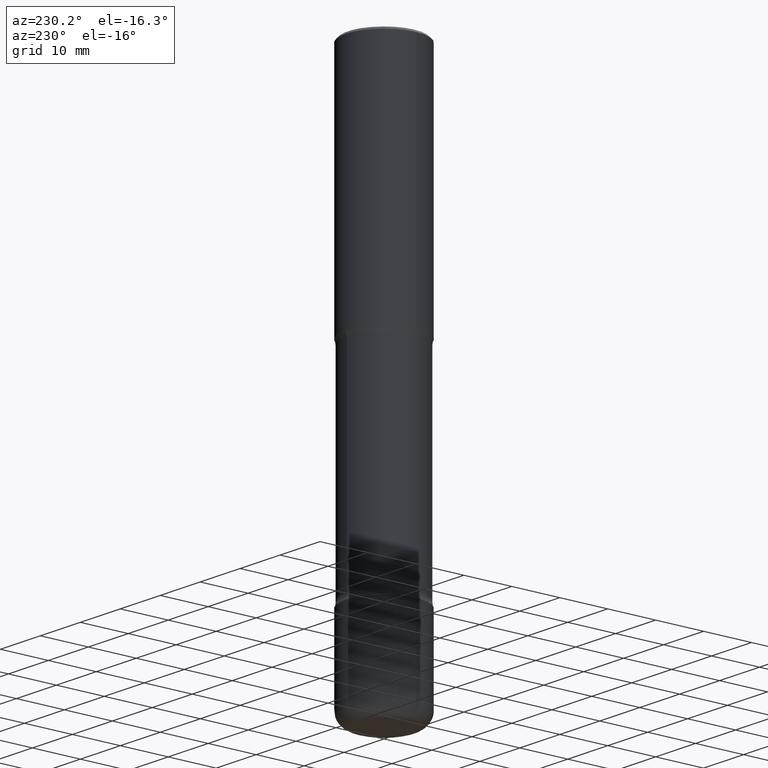
[diagram: clean part render]
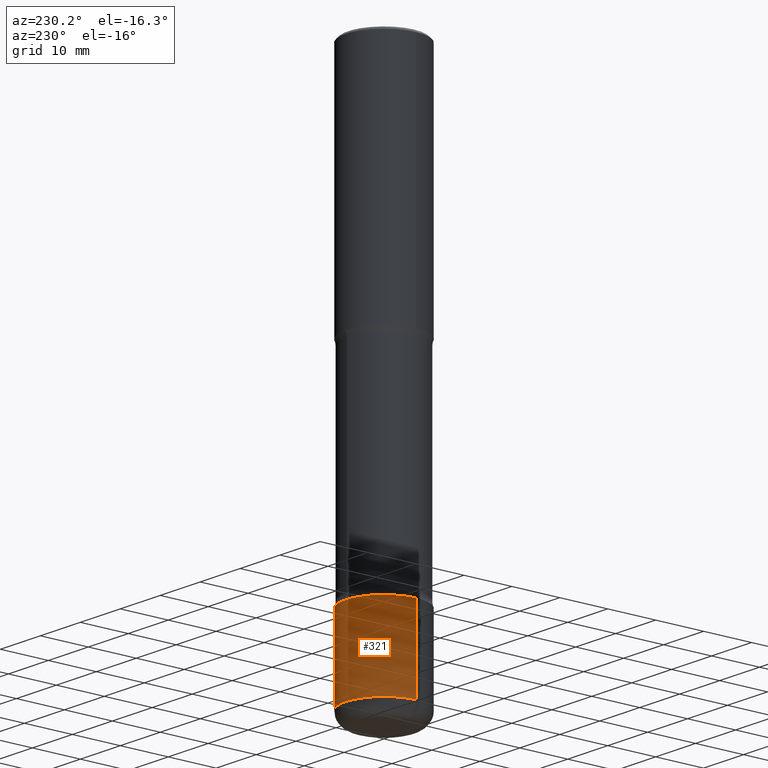
[diagram: same view with one face highlighted and labeled with its STEP entity id]
A machine part, auxiliary view. The second image highlights one B-rep face of the part: STEP entity #321.
In plain terms, the highlighted cylindrical surface (partial cylindrical patch) has radius 7.9997 mm, axis along (-0, 0, 1).
Its self-contained STEP definition (entity closure, byte-faithful):
#1 = CARTESIAN_POINT ( 'NONE',  ( 0.3149500000000002298, -1.525812259887842581E-14, -3.740200000000000191 ) ) ;
#4 = DIRECTION ( 'NONE',  ( -2.445468806185136597E-29, 3.491481338843145583E-15, 1.000000000000000000 ) ) ;
#5 = EDGE_CURVE ( 'NONE', #66, #101, #411, .T. ) ;
#6 = ORIENTED_EDGE ( 'NONE', *, *, #550, .T. ) ;
#66 = VERTEX_POINT ( 'NONE', #324 ) ;
#73 = CARTESIAN_POINT ( 'NONE',  ( 0.3149500000000002853, -2.199284095337291843E-15, 1.535751875536931531E-29 ) ) ;
#81 = ORIENTED_EDGE ( 'NONE', *, *, #458, .F. ) ;
#92 = DIRECTION ( 'NONE',  ( -2.445468806185136597E-29, 3.491481338843145583E-15, 1.000000000000000000 ) ) ;
#94 = FACE_OUTER_BOUND ( 'NONE', #123, .T. ) ;
#99 = CYLINDRICAL_SURFACE ( 'NONE', #125, 0.3149500000000002853 ) ;
#101 = VERTEX_POINT ( 'NONE', #124 ) ;
#117 = CARTESIAN_POINT ( 'NONE',  ( -0.3149500000000002298, -1.198940838730855529E-14, -3.740200000000000191 ) ) ;
#123 = EDGE_LOOP ( 'NONE', ( #305, #6, #399, #81 ) ) ;
#124 = CARTESIAN_POINT ( 'NONE',  ( -0.3149500000000002853, -1.315783261735241693E-14, -4.409500000000000419 ) ) ;
#125 = AXIS2_PLACEMENT_3D ( 'NONE', #188, #4, #128 ) ;
#128 = DIRECTION ( 'NONE',  ( 1.000000000000000000, -6.982962677686267499E-15, 4.876176775795936353E-29 ) ) ;
#139 = DIRECTION ( 'NONE',  ( -2.445468806185136597E-29, 3.491481338843145583E-15, 1.000000000000000000 ) ) ;
#144 = VERTEX_POINT ( 'NONE', #1 ) ;
#188 = CARTESIAN_POINT ( 'NONE',  ( 0.000000000000000000, 0.000000000000000000, 0.000000000000000000 ) ) ;
#253 = CARTESIAN_POINT ( 'NONE',  ( 1.078329470087336022E-28, -1.539568696362885450E-14, -4.409500000000000419 ) ) ;
#257 = DIRECTION ( 'NONE',  ( 1.000000000000000000, -6.982962677686263555E-15, 0.000000000000000000 ) ) ;
#292 = VECTOR ( 'NONE', #495, 39.37007874015748143 ) ;
#299 = DIRECTION ( 'NONE',  ( 1.000000000000000000, -6.982962677686264344E-15, 0.000000000000000000 ) ) ;
#305 = ORIENTED_EDGE ( 'NONE', *, *, #5, .T. ) ;
#308 = LINE ( 'NONE', #73, #442 ) ;
#321 = ADVANCED_FACE ( 'NONE', ( #94 ), #99, .T. ) ;
#324 = CARTESIAN_POINT ( 'NONE',  ( 0.3149500000000002853, -1.759497105896614279E-14, -4.409500000000000419 ) ) ;
#334 = CIRCLE ( 'NONE', #413, 0.3149500000000002298 ) ;
#366 = DIRECTION ( 'NONE',  ( -2.445468806185136877E-29, 3.491481338843145188E-15, 1.000000000000000000 ) ) ;
#388 = CARTESIAN_POINT ( 'NONE',  ( 9.146542428893648262E-29, -1.305883850354113437E-14, -3.740200000000000191 ) ) ;
#399 = ORIENTED_EDGE ( 'NONE', *, *, #416, .F. ) ;
#406 = LINE ( 'NONE', #542, #292 ) ;
#411 = CIRCLE ( 'NONE', #511, 0.3149500000000002853 ) ;
#413 = AXIS2_PLACEMENT_3D ( 'NONE', #388, #139, #299 ) ;
#416 = EDGE_CURVE ( 'NONE', #144, #486, #334, .T. ) ;
#442 = VECTOR ( 'NONE', #366, 39.37007874015748143 ) ;
#458 = EDGE_CURVE ( 'NONE', #66, #144, #308, .T. ) ;
#486 = VERTEX_POINT ( 'NONE', #117 ) ;
#495 = DIRECTION ( 'NONE',  ( -2.445468806185136877E-29, 3.491481338843145188E-15, 1.000000000000000000 ) ) ;
#511 = AXIS2_PLACEMENT_3D ( 'NONE', #253, #92, #257 ) ;
#542 = CARTESIAN_POINT ( 'NONE',  ( -0.3149500000000002853, 2.237854346276437562E-15, -1.549218606675783797E-29 ) ) ;
#550 = EDGE_CURVE ( 'NONE', #101, #486, #406, .T. ) ;